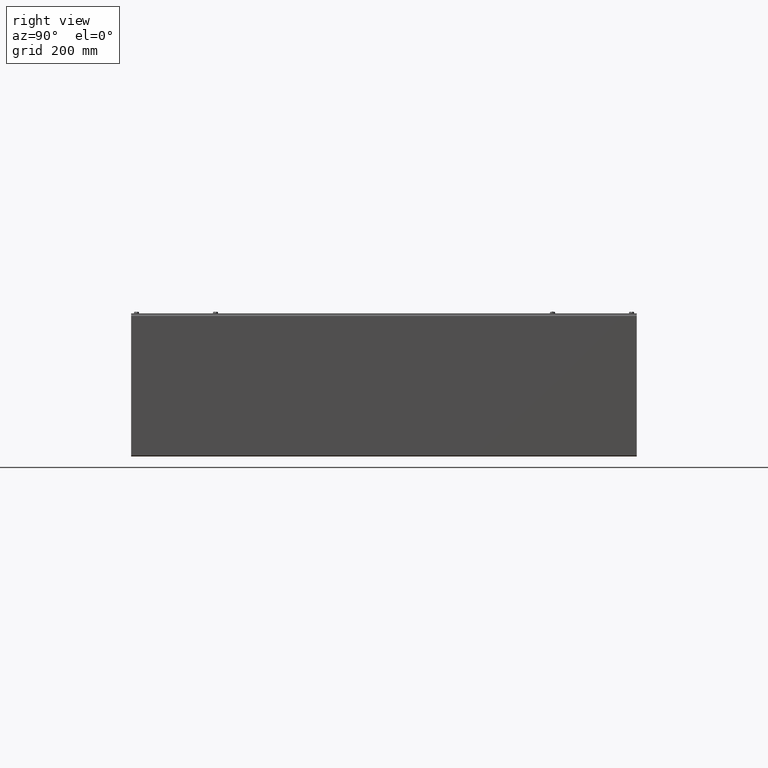
[diagram: clean part render]
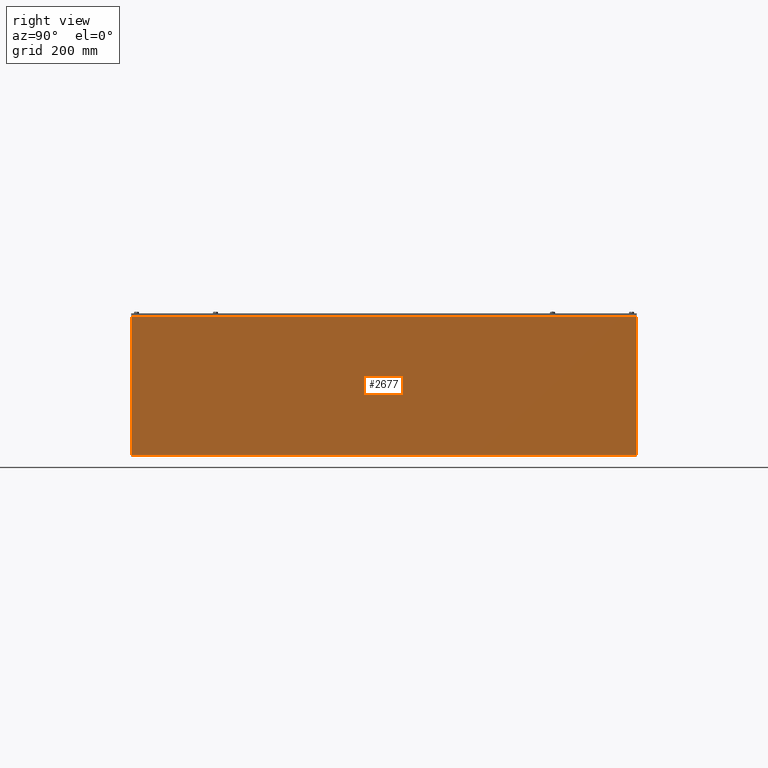
[diagram: same view with one face highlighted and labeled with its STEP entity id]
A machine part, right view. The second image highlights one B-rep face of the part: STEP entity #2677.
In plain terms, the highlighted planar face has unit normal (-1, -0, -0).
Its self-contained STEP definition (entity closure, byte-faithful):
#153=PLANE('',#2875);
#243=LINE('',#3891,#463);
#260=LINE('',#3930,#480);
#263=LINE('',#3937,#483);
#277=LINE('',#3972,#497);
#463=VECTOR('',#3159,36.);
#480=VECTOR('',#3200,9.87505000000001);
#483=VECTOR('',#3207,9.87505);
#497=VECTOR('',#3247,36.);
#757=FACE_OUTER_BOUND('',#924,.T.);
#924=EDGE_LOOP('',(#1908,#1909,#1910,#1911));
#1196=VERTEX_POINT('',#3888);
#1197=VERTEX_POINT('',#3890);
#1207=VERTEX_POINT('',#3928);
#1209=VERTEX_POINT('',#3936);
#1432=EDGE_CURVE('',#1197,#1196,#243,.T.);
#1452=EDGE_CURVE('',#1207,#1196,#260,.T.);
#1455=EDGE_CURVE('',#1197,#1209,#263,.T.);
#1473=EDGE_CURVE('',#1207,#1209,#277,.T.);
#1908=ORIENTED_EDGE('',*,*,#1432,.T.);
#1909=ORIENTED_EDGE('',*,*,#1452,.F.);
#1910=ORIENTED_EDGE('',*,*,#1473,.T.);
#1911=ORIENTED_EDGE('',*,*,#1455,.F.);
#2677=ADVANCED_FACE('',(#757),#153,.F.);
#2875=AXIS2_PLACEMENT_3D('',#3986,#3263,#3264);
#3159=DIRECTION('',(3.12753788539591E-016,-1.,4.66235390918701E-016));
#3200=DIRECTION('',(-5.14531160026499E-014,-7.98721666536274E-030,1.));
#3207=DIRECTION('',(-2.43727060154723E-013,-3.06161699786876E-016,-1.));
#3247=DIRECTION('',(-3.12753788539614E-016,1.,-8.09573574417006E-030));
#3263=DIRECTION('center_axis',(-1.,-3.12753788539614E-016,-4.9517567278671E-014));
#3264=DIRECTION('ref_axis',(-5.41433564649196E-014,0.,1.));
#3888=CARTESIAN_POINT('',(36.0937499999995,1.26580400087027E-017,9.98440000000001));
#3890=CARTESIAN_POINT('',(36.0937499999995,36.,9.98439999999999));
#3891=CARTESIAN_POINT('',(36.0937499999995,27.,9.9844));
#3928=CARTESIAN_POINT('',(36.09375,5.54046612339337E-018,0.10935));
#3930=CARTESIAN_POINT('',(36.09375,5.54046612339461E-018,0.109350000000011));
#3936=CARTESIAN_POINT('',(36.09375,36.,0.109349999999994));
#3937=CARTESIAN_POINT('',(36.09375,36.,-0.0692495423565764));
#3972=CARTESIAN_POINT('',(36.09375,18.,0.10935));
#3986=CARTESIAN_POINT('Origin',(36.0937499999998,18.,5.01002511441087));